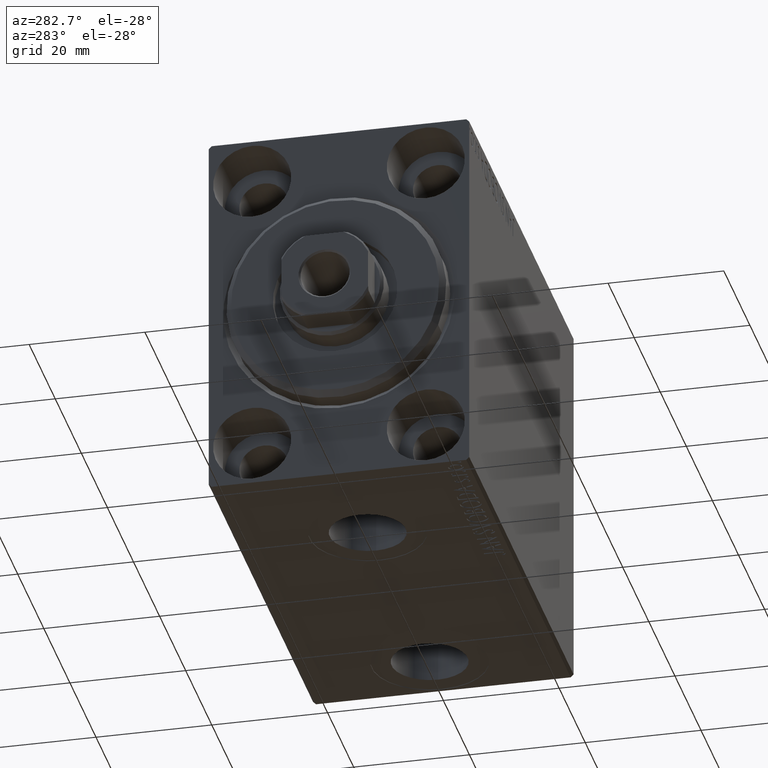
[diagram: clean part render]
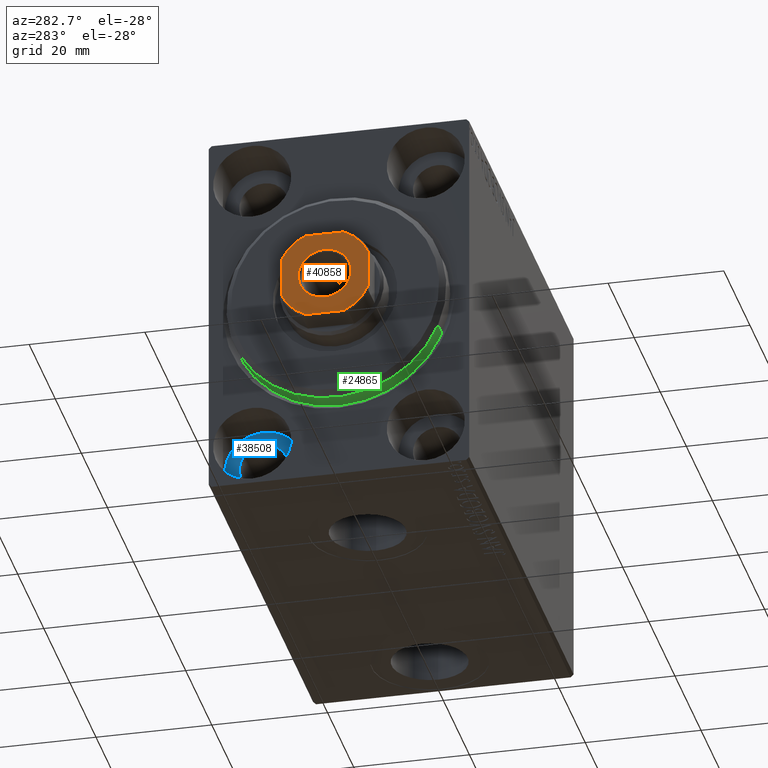
[diagram: same view with three faces highlighted in distinct colors, each labeled with its STEP entity id]
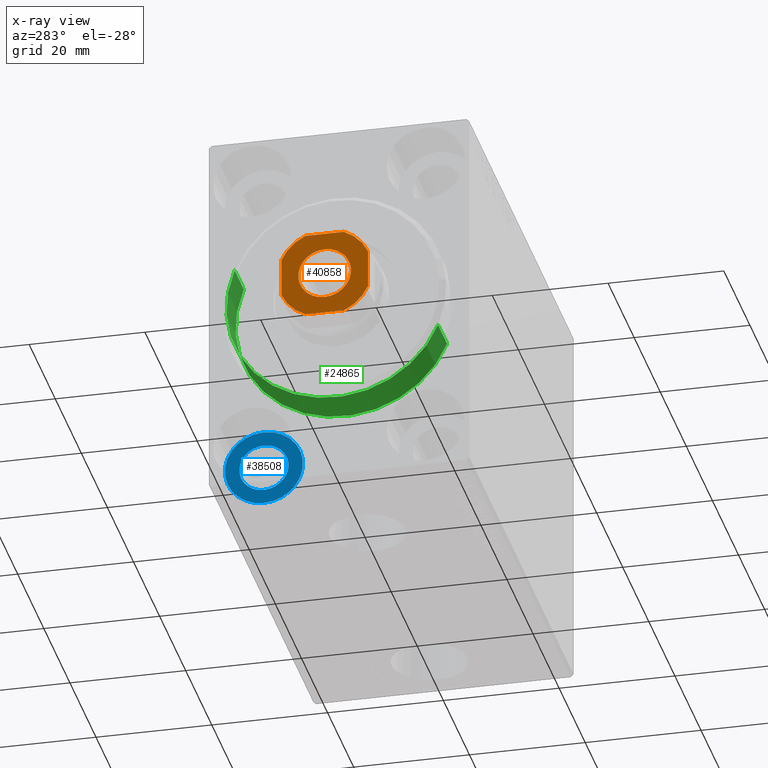
[diagram: x-ray of the same camera — body ghosted, the three highlighted faces saturated]
A machine part, auxiliary view with three faces highlighted in distinct colors.
The next image is the same camera in x-ray (body ghosted, the three faces saturated) — at least one of them is partly hidden behind the body in this view.
Their STEP definitions:

[orange] entity #40858 — the highlighted planar face has unit normal (-1, 0, 0).
#681 = DIRECTION ( 'NONE',  ( 1.000000000000000000, 0.000000000000000000, 0.000000000000000000 ) ) ;
#735 = VECTOR ( 'NONE', #8608, 1000.000000000000000 ) ;
#883 = CARTESIAN_POINT ( 'NONE',  ( -3.315116890850201781, -7.499999999999998224, 85.00000000000000000 ) ) ;
#1016 = DIRECTION ( 'NONE',  ( -0.000000000000000000, 0.000000000000000000, 1.000000000000000000 ) ) ;
#1387 = CARTESIAN_POINT ( 'NONE',  ( -7.500000000000001776, 7.500000000000001776, 85.00000000000000000 ) ) ;
#1518 = DIRECTION ( 'NONE',  ( 1.000000000000000000, 0.000000000000000000, 0.000000000000000000 ) ) ;
#1902 = LINE ( 'NONE', #15826, #42905 ) ;
#2042 = CIRCLE ( 'NONE', #27559, 8.200000000000002842 ) ;
#2544 = ORIENTED_EDGE ( 'NONE', *, *, #42409, .T. ) ;
#2607 = EDGE_CURVE ( 'NONE', #18386, #20914, #37522, .T. ) ;
#3639 = CARTESIAN_POINT ( 'NONE',  ( -3.315116890850128506, 7.500000000000000888, 85.00000000000000000 ) ) ;
#3764 = CARTESIAN_POINT ( 'NONE',  ( 0.000000000000000000, 0.000000000000000000, 85.00000000000000000 ) ) ;
#4060 = CARTESIAN_POINT ( 'NONE',  ( -7.499999999999999112, -3.315116890850197784, 85.00000000000000000 ) ) ;
#4061 = CARTESIAN_POINT ( 'NONE',  ( 7.499999999999998224, 3.315116890850166698, 85.00000000000000000 ) ) ;
#4132 = VERTEX_POINT ( 'NONE', #14618 ) ;
#4272 = AXIS2_PLACEMENT_3D ( 'NONE', #3764, #1016, #31614 ) ;
#5544 = DIRECTION ( 'NONE',  ( -1.156482317317871478E-16, 1.000000000000000000, -0.000000000000000000 ) ) ;
#5605 = EDGE_CURVE ( 'NONE', #6363, #14730, #26678, .T. ) ;
#6363 = VERTEX_POINT ( 'NONE', #3639 ) ;
#7382 = FACE_BOUND ( 'NONE', #42239, .T. ) ;
#7721 = VERTEX_POINT ( 'NONE', #883 ) ;
#8262 = CARTESIAN_POINT ( 'NONE',  ( 0.000000000000000000, 0.000000000000000000, 85.00000000000000000 ) ) ;
#8608 = DIRECTION ( 'NONE',  ( 1.000000000000000000, 0.000000000000000000, 0.000000000000000000 ) ) ;
#8693 = AXIS2_PLACEMENT_3D ( 'NONE', #8262, #25406, #18327 ) ;
#10811 = CIRCLE ( 'NONE', #4272, 8.200000000000017053 ) ;
#11434 = DIRECTION ( 'NONE',  ( 0.000000000000000000, -0.000000000000000000, -1.000000000000000000 ) ) ;
#11715 = DIRECTION ( 'NONE',  ( -0.000000000000000000, 0.000000000000000000, 1.000000000000000000 ) ) ;
#14392 = CARTESIAN_POINT ( 'NONE',  ( 3.315116890850160924, 7.500000000000000888, 85.00000000000000000 ) ) ;
#14618 = CARTESIAN_POINT ( 'NONE',  ( -4.550000000000012257, 5.572142936120472118E-16, 85.00000000000000000 ) ) ;
#14730 = VERTEX_POINT ( 'NONE', #16547 ) ;
#15164 = DIRECTION ( 'NONE',  ( 0.000000000000000000, -0.000000000000000000, -1.000000000000000000 ) ) ;
#15431 = DIRECTION ( 'NONE',  ( -0.000000000000000000, 0.000000000000000000, 1.000000000000000000 ) ) ;
#15735 = CIRCLE ( 'NONE', #40548, 4.550000000000012257 ) ;
#15826 = CARTESIAN_POINT ( 'NONE',  ( 7.499999999999997335, 7.500000000000000888, 85.00000000000000000 ) ) ;
#16547 = CARTESIAN_POINT ( 'NONE',  ( -7.500000000000000888, 3.315116890850129838, 85.00000000000000000 ) ) ;
#16745 = EDGE_CURVE ( 'NONE', #19671, #17809, #2042, .T. ) ;
#16775 = AXIS2_PLACEMENT_3D ( 'NONE', #29440, #11434, #25587 ) ;
#17027 = EDGE_CURVE ( 'NONE', #39928, #7721, #10811, .T. ) ;
#17269 = LINE ( 'NONE', #27995, #37207 ) ;
#17809 = VERTEX_POINT ( 'NONE', #42400 ) ;
#17871 = FACE_OUTER_BOUND ( 'NONE', #26078, .T. ) ;
#18327 = DIRECTION ( 'NONE',  ( 1.000000000000000000, 0.000000000000000000, 0.000000000000000000 ) ) ;
#18386 = VERTEX_POINT ( 'NONE', #4061 ) ;
#18844 = CARTESIAN_POINT ( 'NONE',  ( 0.000000000000000000, 0.000000000000000000, 85.00000000000000000 ) ) ;
#19115 = DIRECTION ( 'NONE',  ( -0.000000000000000000, 0.000000000000000000, 1.000000000000000000 ) ) ;
#19422 = ORIENTED_EDGE ( 'NONE', *, *, #16745, .T. ) ;
#19671 = VERTEX_POINT ( 'NONE', #30199 ) ;
#20471 = ORIENTED_EDGE ( 'NONE', *, *, #42656, .T. ) ;
#20914 = VERTEX_POINT ( 'NONE', #14392 ) ;
#21573 = AXIS2_PLACEMENT_3D ( 'NONE', #43036, #11715, #39592 ) ;
#21865 = EDGE_CURVE ( 'NONE', #4132, #40757, #23354, .T. ) ;
#21987 = PLANE ( 'NONE',  #8693 ) ;
#23354 = CIRCLE ( 'NONE', #16775, 4.550000000000012257 ) ;
#25406 = DIRECTION ( 'NONE',  ( -0.000000000000000000, 0.000000000000000000, 1.000000000000000000 ) ) ;
#25443 = DIRECTION ( 'NONE',  ( 1.000000000000000000, 0.000000000000000000, 0.000000000000000000 ) ) ;
#25587 = DIRECTION ( 'NONE',  ( 1.000000000000000000, 0.000000000000000000, 0.000000000000000000 ) ) ;
#25831 = AXIS2_PLACEMENT_3D ( 'NONE', #25979, #19115, #681 ) ;
#25876 = CARTESIAN_POINT ( 'NONE',  ( 0.000000000000000000, 0.000000000000000000, 85.00000000000000000 ) ) ;
#25979 = CARTESIAN_POINT ( 'NONE',  ( 0.000000000000000000, 0.000000000000000000, 85.00000000000000000 ) ) ;
#26078 = EDGE_LOOP ( 'NONE', ( #39196, #34404, #2544, #38873, #20471, #35774, #41109, #19422 ) ) ;
#26678 = CIRCLE ( 'NONE', #21573, 8.199999999999990408 ) ;
#27559 = AXIS2_PLACEMENT_3D ( 'NONE', #18844, #15431, #1518 ) ;
#27785 = EDGE_CURVE ( 'NONE', #40757, #4132, #15735, .T. ) ;
#27995 = CARTESIAN_POINT ( 'NONE',  ( -7.500000000000001776, 7.500000000000001776, 85.00000000000000000 ) ) ;
#28780 = DIRECTION ( 'NONE',  ( 1.734723475976807094E-16, -1.000000000000000000, 0.000000000000000000 ) ) ;
#28822 = ORIENTED_EDGE ( 'NONE', *, *, #21865, .T. ) ;
#29440 = CARTESIAN_POINT ( 'NONE',  ( 0.000000000000000000, 0.000000000000000000, 85.00000000000000000 ) ) ;
#29678 = LINE ( 'NONE', #1387, #37931 ) ;
#30199 = CARTESIAN_POINT ( 'NONE',  ( 3.315116890850167586, -7.499999999999996447, 85.00000000000000000 ) ) ;
#30762 = DIRECTION ( 'NONE',  ( -1.000000000000000000, 5.782411586589357392E-17, -0.000000000000000000 ) ) ;
#31614 = DIRECTION ( 'NONE',  ( 1.000000000000000000, 0.000000000000000000, 0.000000000000000000 ) ) ;
#33045 = LINE ( 'NONE', #42691, #735 ) ;
#33881 = ORIENTED_EDGE ( 'NONE', *, *, #27785, .T. ) ;
#34404 = ORIENTED_EDGE ( 'NONE', *, *, #2607, .T. ) ;
#35241 = CARTESIAN_POINT ( 'NONE',  ( 4.550000000000012257, 0.000000000000000000, 85.00000000000000000 ) ) ;
#35774 = ORIENTED_EDGE ( 'NONE', *, *, #17027, .T. ) ;
#37207 = VECTOR ( 'NONE', #30762, 1000.000000000000000 ) ;
#37522 = CIRCLE ( 'NONE', #25831, 8.200000000000002842 ) ;
#37931 = VECTOR ( 'NONE', #28780, 1000.000000000000000 ) ;
#38147 = EDGE_CURVE ( 'NONE', #17809, #18386, #1902, .T. ) ;
#38873 = ORIENTED_EDGE ( 'NONE', *, *, #5605, .T. ) ;
#39196 = ORIENTED_EDGE ( 'NONE', *, *, #38147, .T. ) ;
#39592 = DIRECTION ( 'NONE',  ( 1.000000000000000000, 0.000000000000000000, 0.000000000000000000 ) ) ;
#39928 = VERTEX_POINT ( 'NONE', #4060 ) ;
#40548 = AXIS2_PLACEMENT_3D ( 'NONE', #25876, #15164, #25443 ) ;
#40757 = VERTEX_POINT ( 'NONE', #35241 ) ;
#40858 = ADVANCED_FACE ( 'NONE', ( #7382, #17871 ), #21987, .T. ) ;
#41109 = ORIENTED_EDGE ( 'NONE', *, *, #42241, .T. ) ;
#42239 = EDGE_LOOP ( 'NONE', ( #33881, #28822 ) ) ;
#42241 = EDGE_CURVE ( 'NONE', #7721, #19671, #33045, .T. ) ;
#42400 = CARTESIAN_POINT ( 'NONE',  ( 7.499999999999998224, -3.315116890850165365, 85.00000000000000000 ) ) ;
#42409 = EDGE_CURVE ( 'NONE', #20914, #6363, #17269, .T. ) ;
#42656 = EDGE_CURVE ( 'NONE', #14730, #39928, #29678, .T. ) ;
#42691 = CARTESIAN_POINT ( 'NONE',  ( -7.499999999999999112, -7.499999999999998224, 85.00000000000000000 ) ) ;
#42905 = VECTOR ( 'NONE', #5544, 1000.000000000000000 ) ;
#43036 = CARTESIAN_POINT ( 'NONE',  ( 0.000000000000000000, 0.000000000000000000, 85.00000000000000000 ) ) ;

[blue] entity #38508 — the highlighted planar face has unit normal (-1, 0, 0).
#886 = EDGE_CURVE ( 'NONE', #32715, #12433, #2479, .T. ) ;
#1351 = PLANE ( 'NONE',  #31262 ) ;
#1746 = EDGE_CURVE ( 'NONE', #26023, #21029, #38249, .T. ) ;
#2479 = CIRCLE ( 'NONE', #25096, 6.749999999999999112 ) ;
#2754 = DIRECTION ( 'NONE',  ( 0.000000000000000000, 0.000000000000000000, 1.000000000000000000 ) ) ;
#2845 = DIRECTION ( 'NONE',  ( 0.000000000000000000, 0.000000000000000000, 1.000000000000000000 ) ) ;
#3100 = CARTESIAN_POINT ( 'NONE',  ( 9.000000000000000000, 14.99999999999999645, -31.75000000000000000 ) ) ;
#6165 = CARTESIAN_POINT ( 'NONE',  ( 8.999999999999994671, 14.99999999999999645, -25.00000000000000000 ) ) ;
#6759 = DIRECTION ( 'NONE',  ( 0.000000000000000000, 0.000000000000000000, 1.000000000000000000 ) ) ;
#6904 = AXIS2_PLACEMENT_3D ( 'NONE', #6165, #20081, #2754 ) ;
#7755 = FACE_OUTER_BOUND ( 'NONE', #10145, .T. ) ;
#8443 = CARTESIAN_POINT ( 'NONE',  ( 8.999999999999994671, 14.99999999999999645, -20.75000000000000355 ) ) ;
#9094 = CARTESIAN_POINT ( 'NONE',  ( 8.999999999999994671, 14.99999999999999645, -29.25000000000000000 ) ) ;
#9143 = CARTESIAN_POINT ( 'NONE',  ( 9.000000000000000000, 14.99999999999999645, -18.25000000000000355 ) ) ;
#9346 = ORIENTED_EDGE ( 'NONE', *, *, #25003, .T. ) ;
#10145 = EDGE_LOOP ( 'NONE', ( #9346, #43035 ) ) ;
#12433 = VERTEX_POINT ( 'NONE', #9143 ) ;
#15049 = DIRECTION ( 'NONE',  ( -1.000000000000000000, 0.000000000000000000, 0.000000000000000000 ) ) ;
#16394 = AXIS2_PLACEMENT_3D ( 'NONE', #34126, #41212, #2845 ) ;
#17586 = EDGE_LOOP ( 'NONE', ( #25889, #24173 ) ) ;
#19166 = DIRECTION ( 'NONE',  ( 0.000000000000000000, 0.000000000000000000, 1.000000000000000000 ) ) ;
#20081 = DIRECTION ( 'NONE',  ( -1.000000000000000000, 0.000000000000000000, 0.000000000000000000 ) ) ;
#21029 = VERTEX_POINT ( 'NONE', #9094 ) ;
#21445 = FACE_BOUND ( 'NONE', #17586, .T. ) ;
#23870 = EDGE_CURVE ( 'NONE', #21029, #26023, #39020, .T. ) ;
#24173 = ORIENTED_EDGE ( 'NONE', *, *, #23870, .F. ) ;
#25003 = EDGE_CURVE ( 'NONE', #12433, #32715, #42713, .T. ) ;
#25096 = AXIS2_PLACEMENT_3D ( 'NONE', #33109, #44348, #19166 ) ;
#25889 = ORIENTED_EDGE ( 'NONE', *, *, #1746, .F. ) ;
#26023 = VERTEX_POINT ( 'NONE', #8443 ) ;
#27526 = DIRECTION ( 'NONE',  ( -1.000000000000000000, 0.000000000000000000, 0.000000000000000000 ) ) ;
#29200 = DIRECTION ( 'NONE',  ( 0.000000000000000000, 0.000000000000000000, 1.000000000000000000 ) ) ;
#31262 = AXIS2_PLACEMENT_3D ( 'NONE', #35622, #15049, #29200 ) ;
#32715 = VERTEX_POINT ( 'NONE', #3100 ) ;
#33109 = CARTESIAN_POINT ( 'NONE',  ( 9.000000000000000000, 14.99999999999999645, -25.00000000000000000 ) ) ;
#34126 = CARTESIAN_POINT ( 'NONE',  ( 9.000000000000000000, 14.99999999999999645, -25.00000000000000000 ) ) ;
#35622 = CARTESIAN_POINT ( 'NONE',  ( 9.000000000000000000, 14.99999999999999645, -25.00000000000000000 ) ) ;
#38249 = CIRCLE ( 'NONE', #6904, 4.249999999999996447 ) ;
#38508 = ADVANCED_FACE ( 'NONE', ( #21445, #7755 ), #1351, .T. ) ;
#39020 = CIRCLE ( 'NONE', #42642, 4.249999999999996447 ) ;
#41212 = DIRECTION ( 'NONE',  ( -1.000000000000000000, 0.000000000000000000, 0.000000000000000000 ) ) ;
#42642 = AXIS2_PLACEMENT_3D ( 'NONE', #44720, #27526, #6759 ) ;
#42713 = CIRCLE ( 'NONE', #16394, 6.749999999999999112 ) ;
#43035 = ORIENTED_EDGE ( 'NONE', *, *, #886, .T. ) ;
#44348 = DIRECTION ( 'NONE',  ( -1.000000000000000000, 0.000000000000000000, 0.000000000000000000 ) ) ;
#44720 = CARTESIAN_POINT ( 'NONE',  ( 8.999999999999994671, 14.99999999999999645, -25.00000000000000000 ) ) ;

[green] entity #24865 — the highlighted cylindrical surface (partial cylindrical patch) has radius 19 mm, axis along (1, 0, 0).
#1701 = CYLINDRICAL_SURFACE ( 'NONE', #15673, 19.00000000000000000 ) ;
#2381 = CARTESIAN_POINT ( 'NONE',  ( 3.000000000000000000, 0.000000000000000000, 0.000000000000000000 ) ) ;
#4151 = DIRECTION ( 'NONE',  ( 0.000000000000000000, 0.000000000000000000, -1.000000000000000000 ) ) ;
#5446 = DIRECTION ( 'NONE',  ( -1.000000000000000000, -0.000000000000000000, -0.000000000000000000 ) ) ;
#6756 = EDGE_CURVE ( 'NONE', #44256, #8882, #12868, .T. ) ;
#7356 = CARTESIAN_POINT ( 'NONE',  ( 3.000000000000000000, 2.326828918379970970E-15, -19.00000000000000000 ) ) ;
#8749 = DIRECTION ( 'NONE',  ( 0.000000000000000000, 0.000000000000000000, 1.000000000000000000 ) ) ;
#8882 = VERTEX_POINT ( 'NONE', #28447 ) ;
#10941 = CARTESIAN_POINT ( 'NONE',  ( -5.000000000000000000, 0.000000000000000000, 19.00000000000000000 ) ) ;
#10998 = CARTESIAN_POINT ( 'NONE',  ( 1.999999999999992228, 0.000000000000000000, 0.000000000000000000 ) ) ;
#12868 = CIRCLE ( 'NONE', #35474, 19.00000000000000000 ) ;
#12943 = CIRCLE ( 'NONE', #30451, 19.00000000000000000 ) ;
#13516 = DIRECTION ( 'NONE',  ( -1.000000000000000000, -0.000000000000000000, -0.000000000000000000 ) ) ;
#14354 = VERTEX_POINT ( 'NONE', #10941 ) ;
#15673 = AXIS2_PLACEMENT_3D ( 'NONE', #2381, #26124, #33670 ) ;
#16005 = EDGE_CURVE ( 'NONE', #8882, #31302, #20809, .T. ) ;
#16243 = ORIENTED_EDGE ( 'NONE', *, *, #16005, .T. ) ;
#16923 = CARTESIAN_POINT ( 'NONE',  ( -5.000000000000000000, 2.326828918379970970E-15, -19.00000000000000000 ) ) ;
#18068 = DIRECTION ( 'NONE',  ( -1.000000000000000000, 0.000000000000000000, 0.000000000000000000 ) ) ;
#19040 = FACE_OUTER_BOUND ( 'NONE', #36972, .T. ) ;
#20809 = LINE ( 'NONE', #7356, #40727 ) ;
#23719 = VECTOR ( 'NONE', #5446, 1000.000000000000000 ) ;
#24865 = ADVANCED_FACE ( 'NONE', ( #19040 ), #1701, .T. ) ;
#25017 = ORIENTED_EDGE ( 'NONE', *, *, #6756, .T. ) ;
#25714 = CARTESIAN_POINT ( 'NONE',  ( 1.999999999999992228, 0.000000000000000000, 19.00000000000000000 ) ) ;
#26124 = DIRECTION ( 'NONE',  ( -1.000000000000000000, -0.000000000000000000, -0.000000000000000000 ) ) ;
#27466 = ORIENTED_EDGE ( 'NONE', *, *, #29604, .F. ) ;
#28447 = CARTESIAN_POINT ( 'NONE',  ( 1.999999999999992228, 2.326828918379970970E-15, -19.00000000000000000 ) ) ;
#29604 = EDGE_CURVE ( 'NONE', #44256, #14354, #32645, .T. ) ;
#30451 = AXIS2_PLACEMENT_3D ( 'NONE', #32960, #39612, #8749 ) ;
#31302 = VERTEX_POINT ( 'NONE', #16923 ) ;
#32645 = LINE ( 'NONE', #36303, #23719 ) ;
#32960 = CARTESIAN_POINT ( 'NONE',  ( -5.000000000000000000, 0.000000000000000000, 0.000000000000000000 ) ) ;
#33670 = DIRECTION ( 'NONE',  ( 0.000000000000000000, 0.000000000000000000, 1.000000000000000000 ) ) ;
#35474 = AXIS2_PLACEMENT_3D ( 'NONE', #10998, #18068, #4151 ) ;
#36179 = EDGE_CURVE ( 'NONE', #14354, #31302, #12943, .T. ) ;
#36303 = CARTESIAN_POINT ( 'NONE',  ( 3.000000000000000000, 0.000000000000000000, 19.00000000000000000 ) ) ;
#36972 = EDGE_LOOP ( 'NONE', ( #25017, #16243, #39700, #27466 ) ) ;
#39612 = DIRECTION ( 'NONE',  ( -1.000000000000000000, 0.000000000000000000, 0.000000000000000000 ) ) ;
#39700 = ORIENTED_EDGE ( 'NONE', *, *, #36179, .F. ) ;
#40727 = VECTOR ( 'NONE', #13516, 1000.000000000000000 ) ;
#44256 = VERTEX_POINT ( 'NONE', #25714 ) ;